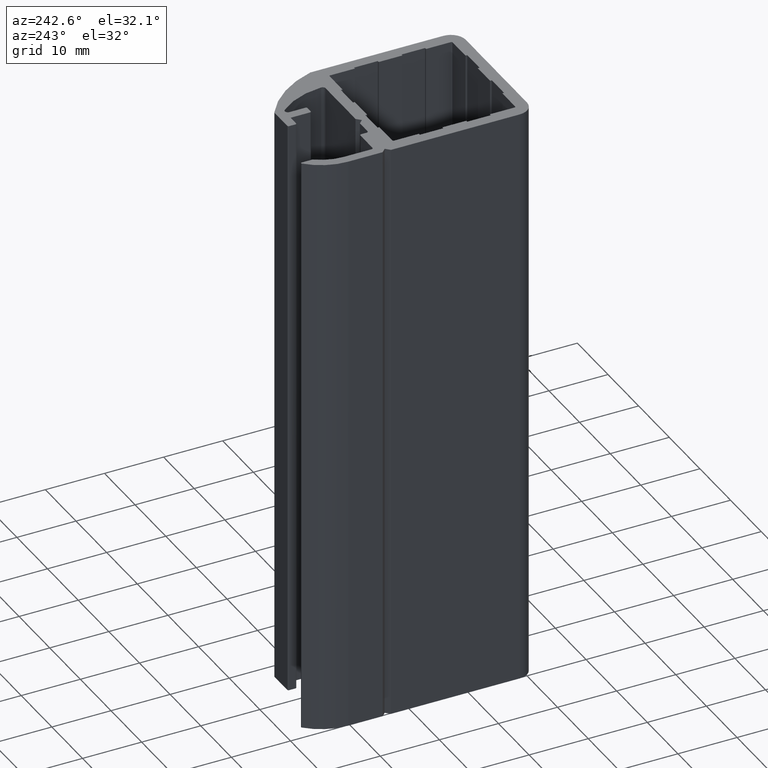
[diagram: clean part render]
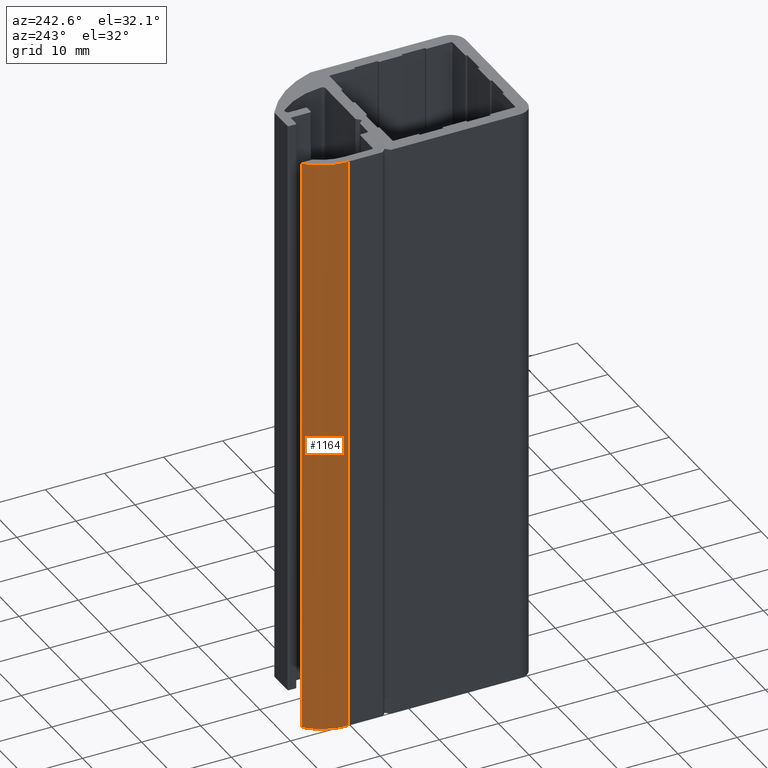
[diagram: same view with one face highlighted and labeled with its STEP entity id]
A machine part, auxiliary view. The second image highlights one B-rep face of the part: STEP entity #1164.
In plain terms, the highlighted cylindrical surface (partial cylindrical patch) has radius 9 mm, axis along (0, 0, 1).
Its self-contained STEP definition (entity closure, byte-faithful):
#1104=CARTESIAN_POINT('',(-9.754148982579636,37.971910111981060,0.0));
#1105=VERTEX_POINT('',#1104);
#1113=CARTESIAN_POINT('',(-9.754148982579636,37.971910111981060,100.0));
#1114=VERTEX_POINT('',#1113);
#1115=CARTESIAN_POINT('',(-9.754148982579636,37.971910111981060,0.0));
#1116=DIRECTION('',(0.0,0.0,1.0));
#1117=VECTOR('',#1116,100.0);
#1118=LINE('',#1115,#1117);
#1119=EDGE_CURVE('',#1105,#1114,#1118,.T.);
#1132=CARTESIAN_POINT('',(-3.499999999964985,31.499999999684889,0.0));
#1133=DIRECTION('',(0.0,0.0,1.0));
#1134=DIRECTION('',(1.0,0.0,0.0));
#1135=AXIS2_PLACEMENT_3D('',#1132,#1133,#1134);
#1136=CYLINDRICAL_SURFACE('',#1135,8.999999999910001);
#1137=CARTESIAN_POINT('',(-12.499999999874944,31.499999999684889,0.0));
#1138=VERTEX_POINT('',#1137);
#1139=CARTESIAN_POINT('',(-3.499999999964985,31.499999999684889,0.0));
#1140=DIRECTION('',(0.0,0.0,1.0));
#1141=DIRECTION('',(1.0,0.0,0.0));
#1142=AXIS2_PLACEMENT_3D('',#1139,#1140,#1141);
#1143=CIRCLE('',#1142,8.999999999910001);
#1144=EDGE_CURVE('',#1105,#1138,#1143,.T.);
#1145=ORIENTED_EDGE('',*,*,#1144,.T.);
#1146=CARTESIAN_POINT('',(-12.499999999874944,31.499999999684889,100.0));
#1147=VERTEX_POINT('',#1146);
#1148=CARTESIAN_POINT('',(-12.499999999874944,31.499999999684889,0.0));
#1149=DIRECTION('',(0.0,0.0,1.0));
#1150=VECTOR('',#1149,100.0);
#1151=LINE('',#1148,#1150);
#1152=EDGE_CURVE('',#1138,#1147,#1151,.T.);
#1153=ORIENTED_EDGE('',*,*,#1152,.T.);
#1154=CARTESIAN_POINT('',(-3.499999999964985,31.499999999684889,100.0));
#1155=DIRECTION('',(0.0,0.0,1.0));
#1156=DIRECTION('',(1.0,0.0,0.0));
#1157=AXIS2_PLACEMENT_3D('',#1154,#1155,#1156);
#1158=CIRCLE('',#1157,8.999999999910001);
#1159=EDGE_CURVE('',#1114,#1147,#1158,.T.);
#1160=ORIENTED_EDGE('',*,*,#1159,.F.);
#1161=ORIENTED_EDGE('',*,*,#1119,.F.);
#1162=EDGE_LOOP('',(#1145,#1153,#1160,#1161));
#1163=FACE_OUTER_BOUND('',#1162,.T.);
#1164=ADVANCED_FACE('',(#1163),#1136,.T.);